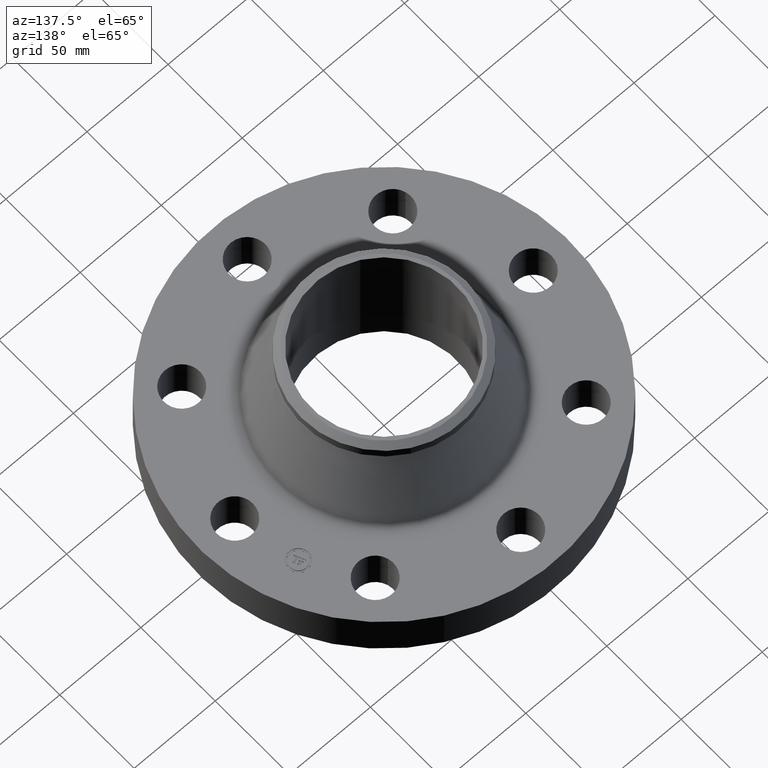
[diagram: clean part render]
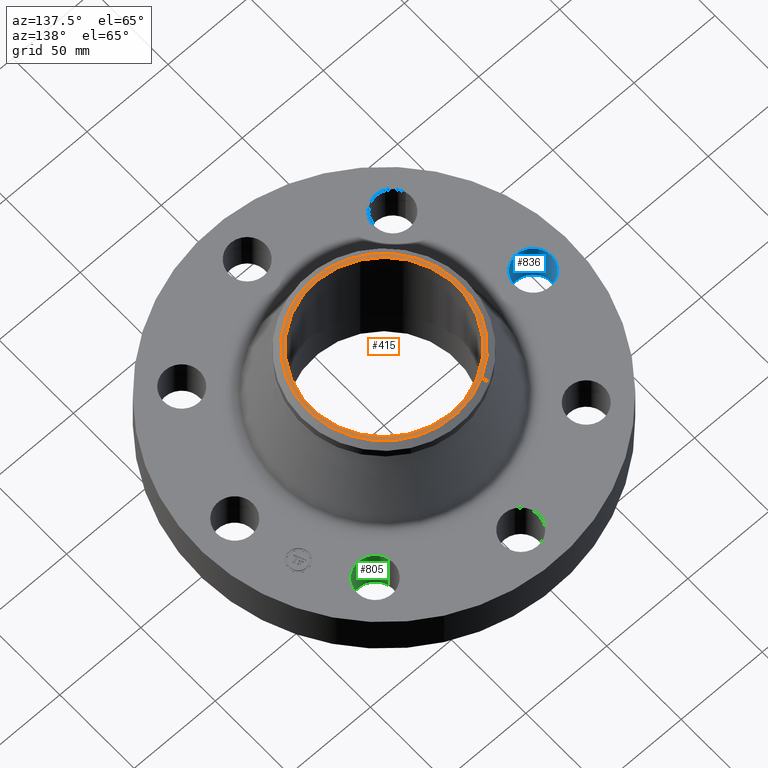
[diagram: same view with three faces highlighted in distinct colors, each labeled with its STEP entity id]
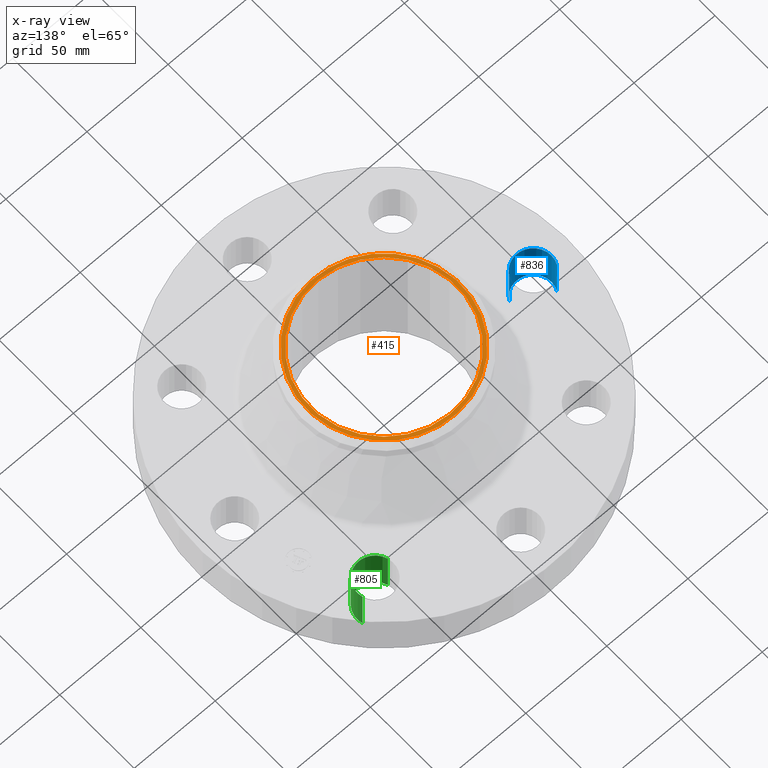
[diagram: x-ray of the same camera — body ghosted, the three highlighted faces saturated]
A machine part, auxiliary view with three faces highlighted in distinct colors.
The next image is the same camera in x-ray (body ghosted, the three faces saturated) — at least one of them is partly hidden behind the body in this view.
Their STEP definitions:

[orange] entity #415 — the highlighted planar face has unit normal (0, 0, -1).
#322=AXIS2_PLACEMENT_3D('Circle Axis2P3D',#320,#321,$) ;
#347=AXIS2_PLACEMENT_3D('Circle Axis2P3D',#345,#346,$) ;
#382=AXIS2_PLACEMENT_3D('Circle Axis2P3D',#380,#381,$) ;
#400=AXIS2_PLACEMENT_3D('Plane Axis2P3D',#397,#398,#399) ;
#404=AXIS2_PLACEMENT_3D('Circle Axis2P3D',#402,#403,$) ;
#317=CARTESIAN_POINT('Vertex',(0.888250947897,-1.62593245392,3.13000000001)) ;
#320=CARTESIAN_POINT('Axis2P3D Location',(0.,0.,3.13000000001)) ;
#324=CARTESIAN_POINT('Vertex',(-0.888250947897,1.62593245392,3.13000000001)) ;
#345=CARTESIAN_POINT('Axis2P3D Location',(0.,0.,3.13000000001)) ;
#349=CARTESIAN_POINT('Vertex',(-0.850500905487,-1.5568314648,3.13000000001)) ;
#351=CARTESIAN_POINT('Vertex',(0.850500905487,1.5568314648,3.13000000001)) ;
#380=CARTESIAN_POINT('Axis2P3D Location',(0.,0.,3.13000000001)) ;
#397=CARTESIAN_POINT('Axis2P3D Location',(0.,2.00000000001,3.13000000001)) ;
#402=CARTESIAN_POINT('Axis2P3D Location',(0.,0.,3.13000000001)) ;
#321=DIRECTION('Axis2P3D Direction',(0.,0.,-0.0393700787402)) ;
#346=DIRECTION('Axis2P3D Direction',(0.,0.,-0.0393700787402)) ;
#381=DIRECTION('Axis2P3D Direction',(0.,0.,-0.0393700787402)) ;
#398=DIRECTION('Axis2P3D Direction',(0.,0.,-0.0393700787402)) ;
#399=DIRECTION('Axis2P3D XDirection',(0.0393700787402,0.,0.)) ;
#403=DIRECTION('Axis2P3D Direction',(0.,0.,-0.0393700787402)) ;
#408=ORIENTED_EDGE('',*,*,#406,.T.) ;
#409=ORIENTED_EDGE('',*,*,#326,.T.) ;
#412=ORIENTED_EDGE('',*,*,#353,.T.) ;
#413=ORIENTED_EDGE('',*,*,#384,.T.) ;
#414=FACE_BOUND('',#411,.T.) ;
#415=ADVANCED_FACE('PartBody',(#410,#414),#401,.F.) ;
#323=CIRCLE('generated circle',#322,1.85274015749) ;
#348=CIRCLE('generated circle',#347,1.77400000001) ;
#383=CIRCLE('generated circle',#382,1.77400000001) ;
#405=CIRCLE('generated circle',#404,1.85274015749) ;
#326=EDGE_CURVE('',#325,#318,#323,.F.) ;
#353=EDGE_CURVE('',#350,#352,#348,.T.) ;
#384=EDGE_CURVE('',#352,#350,#383,.T.) ;
#406=EDGE_CURVE('',#318,#325,#405,.F.) ;
#407=EDGE_LOOP('',(#408,#409)) ;
#411=EDGE_LOOP('',(#412,#413)) ;
#410=FACE_OUTER_BOUND('',#407,.T.) ;
#401=PLANE('',#400) ;
#318=VERTEX_POINT('',#317) ;
#325=VERTEX_POINT('',#324) ;
#350=VERTEX_POINT('',#349) ;
#352=VERTEX_POINT('',#351) ;

[blue] entity #836 — the highlighted cylindrical surface (edge-blend (fillet) strip) has radius 11.176 mm, axis along (-0, 0, -1).
#520=AXIS2_PLACEMENT_3D('Circle Axis2P3D',#518,#519,$) ;
#809=AXIS2_PLACEMENT_3D('Cylinder Axis2P3D',#806,#807,#808) ;
#827=AXIS2_PLACEMENT_3D('Circle Axis2P3D',#825,#826,$) ;
#518=CARTESIAN_POINT('Axis2P3D Location',(-3.62500000001,-8.39223703654E-016,0.)) ;
#522=CARTESIAN_POINT('Vertex',(-3.23886367278,-0.210947236987,0.)) ;
#524=CARTESIAN_POINT('Vertex',(-4.01113632725,0.210947236987,0.)) ;
#806=CARTESIAN_POINT('Axis2P3D Location',(-3.62500000001,-4.43934464693E-016,1.11606299213)) ;
#811=CARTESIAN_POINT('Line Origine',(-3.23886367278,-0.210947236987,0.560000000002)) ;
#815=CARTESIAN_POINT('Vertex',(-3.23886367278,-0.210947236987,1.12)) ;
#818=CARTESIAN_POINT('Line Origine',(-4.01113632725,0.210947236987,0.560000000002)) ;
#822=CARTESIAN_POINT('Vertex',(-4.01113632725,0.210947236987,1.12)) ;
#825=CARTESIAN_POINT('Axis2P3D Location',(-3.62500000001,-4.43934464693E-016,1.12)) ;
#519=DIRECTION('Axis2P3D Direction',(0.,0.,-0.0393700787402)) ;
#807=DIRECTION('Axis2P3D Direction',(-0.,0.,-0.0393700787402)) ;
#808=DIRECTION('Axis2P3D XDirection',(-0.0345504945626,0.0188750212049,0.)) ;
#812=DIRECTION('Vector Direction',(0.,0.,-0.0393700787402)) ;
#819=DIRECTION('Vector Direction',(0.,0.,-0.0393700787402)) ;
#826=DIRECTION('Axis2P3D Direction',(-0.,0.,-0.0393700787402)) ;
#813=VECTOR('Line Direction',#812,0.0393700787402) ;
#820=VECTOR('Line Direction',#819,0.0393700787402) ;
#831=ORIENTED_EDGE('',*,*,#817,.F.) ;
#832=ORIENTED_EDGE('',*,*,#526,.T.) ;
#833=ORIENTED_EDGE('',*,*,#824,.T.) ;
#834=ORIENTED_EDGE('',*,*,#829,.F.) ;
#836=ADVANCED_FACE('PartBody',(#835),#810,.F.) ;
#521=CIRCLE('generated circle',#520,0.440000000002) ;
#828=CIRCLE('generated circle',#827,0.440000000002) ;
#810=CYLINDRICAL_SURFACE('generated cylinder',#809,0.440000000002) ;
#526=EDGE_CURVE('',#523,#525,#521,.T.) ;
#817=EDGE_CURVE('',#523,#816,#814,.F.) ;
#824=EDGE_CURVE('',#525,#823,#821,.F.) ;
#829=EDGE_CURVE('',#816,#823,#828,.T.) ;
#830=EDGE_LOOP('',(#831,#832,#833,#834)) ;
#835=FACE_OUTER_BOUND('',#830,.T.) ;
#814=LINE('Line',#811,#813) ;
#821=LINE('Line',#818,#820) ;
#523=VERTEX_POINT('',#522) ;
#525=VERTEX_POINT('',#524) ;
#816=VERTEX_POINT('',#815) ;
#823=VERTEX_POINT('',#822) ;

[green] entity #805 — the highlighted cylindrical surface (edge-blend (fillet) strip) has radius 11.176 mm, axis along (0, 0, -1).
#583=AXIS2_PLACEMENT_3D('Circle Axis2P3D',#581,#582,$) ;
#766=AXIS2_PLACEMENT_3D('Cylinder Axis2P3D',#763,#764,#765) ;
#796=AXIS2_PLACEMENT_3D('Circle Axis2P3D',#794,#795,$) ;
#576=CARTESIAN_POINT('Vertex',(2.14106024462,2.43938468811,0.)) ;
#578=CARTESIAN_POINT('Vertex',(2.98546391901,2.68713947551,0.)) ;
#581=CARTESIAN_POINT('Axis2P3D Location',(2.56326208181,2.56326208181,0.)) ;
#763=CARTESIAN_POINT('Axis2P3D Location',(2.56326208181,2.56326208181,1.11606299213)) ;
#768=CARTESIAN_POINT('Line Origine',(2.14106024462,2.43938468811,0.560000000002)) ;
#772=CARTESIAN_POINT('Vertex',(2.14106024462,2.43938468811,1.12)) ;
#775=CARTESIAN_POINT('Line Origine',(2.98546391901,2.68713947551,0.560000000002)) ;
#779=CARTESIAN_POINT('Vertex',(2.98546391901,2.68713947551,1.12)) ;
#794=CARTESIAN_POINT('Axis2P3D Location',(2.56326208181,2.56326208181,1.12)) ;
#582=DIRECTION('Axis2P3D Direction',(0.,0.,-0.0393700787402)) ;
#764=DIRECTION('Axis2P3D Direction',(0.,0.,-0.0393700787402)) ;
#765=DIRECTION('Axis2P3D XDirection',(0.0377775444876,0.0110842335096,0.)) ;
#769=DIRECTION('Vector Direction',(0.,0.,-0.0393700787402)) ;
#776=DIRECTION('Vector Direction',(0.,0.,-0.0393700787402)) ;
#795=DIRECTION('Axis2P3D Direction',(0.,0.,-0.0393700787402)) ;
#770=VECTOR('Line Direction',#769,0.0393700787402) ;
#777=VECTOR('Line Direction',#776,0.0393700787402) ;
#800=ORIENTED_EDGE('',*,*,#781,.F.) ;
#801=ORIENTED_EDGE('',*,*,#585,.T.) ;
#802=ORIENTED_EDGE('',*,*,#774,.T.) ;
#803=ORIENTED_EDGE('',*,*,#798,.F.) ;
#805=ADVANCED_FACE('PartBody',(#804),#767,.F.) ;
#584=CIRCLE('generated circle',#583,0.440000000002) ;
#797=CIRCLE('generated circle',#796,0.440000000002) ;
#767=CYLINDRICAL_SURFACE('generated cylinder',#766,0.440000000002) ;
#585=EDGE_CURVE('',#579,#577,#584,.T.) ;
#774=EDGE_CURVE('',#577,#773,#771,.F.) ;
#781=EDGE_CURVE('',#579,#780,#778,.F.) ;
#798=EDGE_CURVE('',#780,#773,#797,.T.) ;
#799=EDGE_LOOP('',(#800,#801,#802,#803)) ;
#804=FACE_OUTER_BOUND('',#799,.T.) ;
#771=LINE('Line',#768,#770) ;
#778=LINE('Line',#775,#777) ;
#577=VERTEX_POINT('',#576) ;
#579=VERTEX_POINT('',#578) ;
#773=VERTEX_POINT('',#772) ;
#780=VERTEX_POINT('',#779) ;